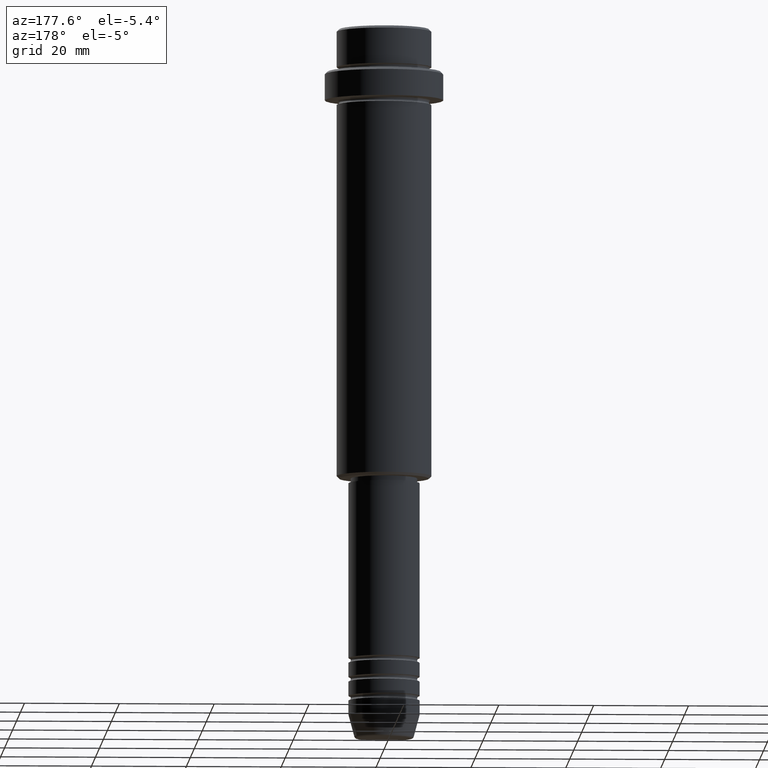
[diagram: clean part render]
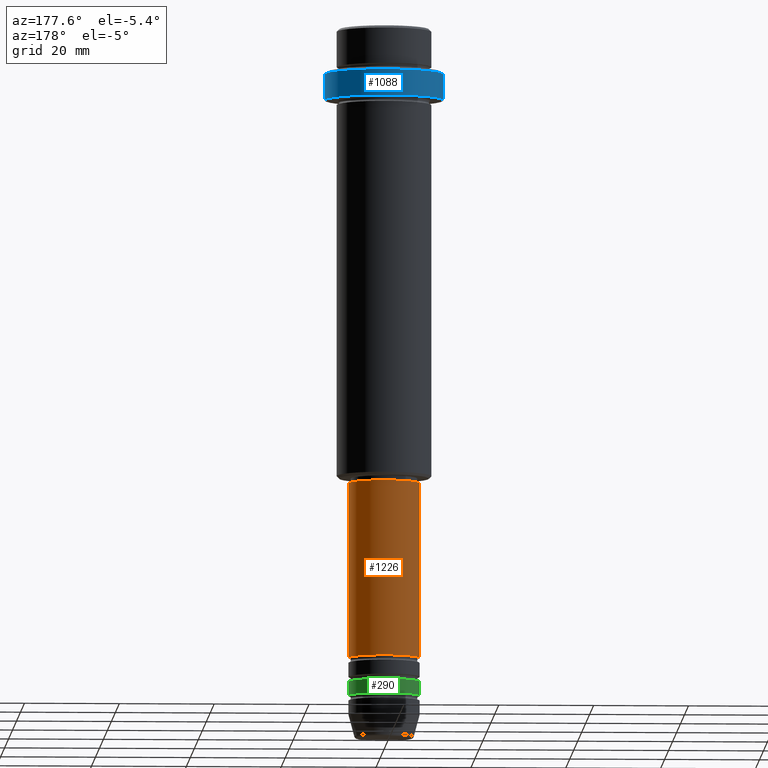
[diagram: same view with three faces highlighted in distinct colors, each labeled with its STEP entity id]
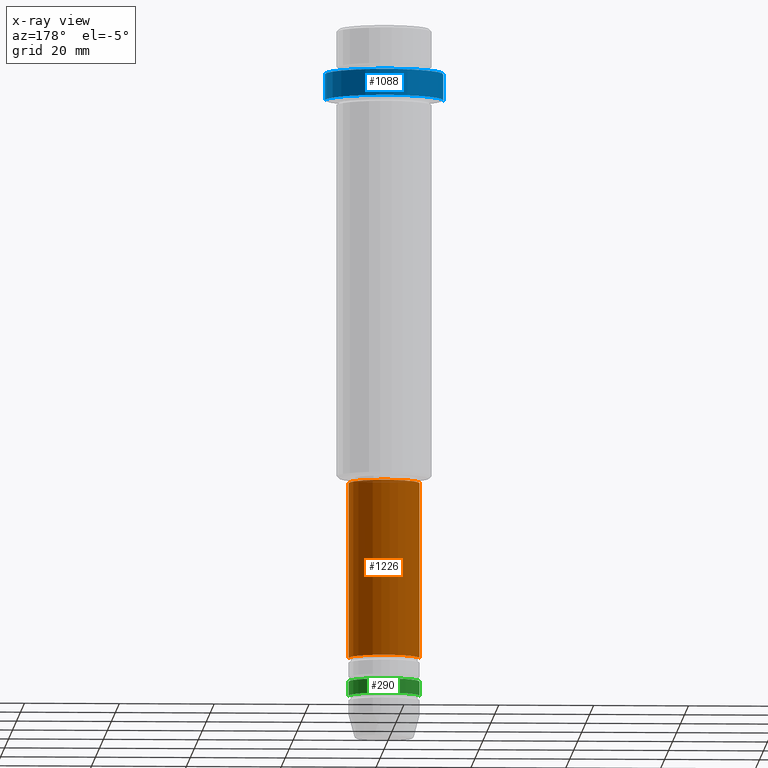
[diagram: x-ray of the same camera — body ghosted, the three highlighted faces saturated]
A machine part, auxiliary view with three faces highlighted in distinct colors.
The next image is the same camera in x-ray (body ghosted, the three faces saturated) — at least one of them is partly hidden behind the body in this view.
Their STEP definitions:

[orange] entity #1226 — the highlighted cylindrical surface (edge-blend (fillet) strip) has radius 7.5 mm, axis along (-0, -0, 1).
#49 = DIRECTION ( 'NONE',  ( -0.000000000000000000, -0.000000000000000000, 1.000000000000000000 ) ) ;
#70 = DIRECTION ( 'NONE',  ( 1.000000000000000000, 0.000000000000000000, 0.000000000000000000 ) ) ;
#73 = ORIENTED_EDGE ( 'NONE', *, *, #585, .T. ) ;
#149 = DIRECTION ( 'NONE',  ( 1.000000000000000000, 0.000000000000000000, 0.000000000000000000 ) ) ;
#194 = VERTEX_POINT ( 'NONE', #342 ) ;
#212 = AXIS2_PLACEMENT_3D ( 'NONE', #358, #1327, #1114 ) ;
#237 = CARTESIAN_POINT ( 'NONE',  ( 0.000000000000000000, 0.000000000000000000, -132.9999999999998579 ) ) ;
#252 = VECTOR ( 'NONE', #686, 1000.000000000000000 ) ;
#257 = LINE ( 'NONE', #1011, #252 ) ;
#342 = CARTESIAN_POINT ( 'NONE',  ( 7.500000000000000000, 0.000000000000000000, -132.9999999999998579 ) ) ;
#358 = CARTESIAN_POINT ( 'NONE',  ( 0.000000000000000000, 0.000000000000000000, 0.000000000000000000 ) ) ;
#396 = CARTESIAN_POINT ( 'NONE',  ( -7.500000000000000000, 9.184850993605147944E-16, -132.9999999999998579 ) ) ;
#444 = VERTEX_POINT ( 'NONE', #1402 ) ;
#585 = EDGE_CURVE ( 'NONE', #913, #1414, #983, .T. ) ;
#587 = EDGE_LOOP ( 'NONE', ( #1158, #73, #802, #1344 ) ) ;
#659 = DIRECTION ( 'NONE',  ( -0.000000000000000000, -0.000000000000000000, 1.000000000000000000 ) ) ;
#686 = DIRECTION ( 'NONE',  ( -0.000000000000000000, -0.000000000000000000, 1.000000000000000000 ) ) ;
#727 = EDGE_CURVE ( 'NONE', #194, #444, #257, .T. ) ;
#802 = ORIENTED_EDGE ( 'NONE', *, *, #1330, .F. ) ;
#854 = AXIS2_PLACEMENT_3D ( 'NONE', #1179, #49, #70 ) ;
#898 = DIRECTION ( 'NONE',  ( -0.000000000000000000, -0.000000000000000000, 1.000000000000000000 ) ) ;
#913 = VERTEX_POINT ( 'NONE', #396 ) ;
#983 = LINE ( 'NONE', #1416, #1012 ) ;
#1011 = CARTESIAN_POINT ( 'NONE',  ( 7.500000000000000000, 0.000000000000000000, 0.000000000000000000 ) ) ;
#1012 = VECTOR ( 'NONE', #659, 1000.000000000000000 ) ;
#1023 = FACE_OUTER_BOUND ( 'NONE', #587, .T. ) ;
#1114 = DIRECTION ( 'NONE',  ( 1.000000000000000000, 0.000000000000000000, 0.000000000000000000 ) ) ;
#1120 = CYLINDRICAL_SURFACE ( 'NONE', #212, 7.500000000000000000 ) ;
#1140 = EDGE_CURVE ( 'NONE', #194, #913, #1177, .T. ) ;
#1158 = ORIENTED_EDGE ( 'NONE', *, *, #1140, .T. ) ;
#1177 = CIRCLE ( 'NONE', #1339, 7.500000000000000000 ) ;
#1179 = CARTESIAN_POINT ( 'NONE',  ( 0.000000000000000000, 0.000000000000000000, -96.00000000000000000 ) ) ;
#1226 = ADVANCED_FACE ( 'NONE', ( #1023 ), #1120, .T. ) ;
#1259 = CARTESIAN_POINT ( 'NONE',  ( -7.500000000000000000, 9.184850993605147944E-16, -96.00000000000000000 ) ) ;
#1327 = DIRECTION ( 'NONE',  ( -0.000000000000000000, -0.000000000000000000, 1.000000000000000000 ) ) ;
#1330 = EDGE_CURVE ( 'NONE', #444, #1414, #1361, .T. ) ;
#1339 = AXIS2_PLACEMENT_3D ( 'NONE', #237, #898, #149 ) ;
#1344 = ORIENTED_EDGE ( 'NONE', *, *, #727, .F. ) ;
#1361 = CIRCLE ( 'NONE', #854, 7.500000000000000000 ) ;
#1402 = CARTESIAN_POINT ( 'NONE',  ( 7.500000000000000000, 0.000000000000000000, -96.00000000000000000 ) ) ;
#1414 = VERTEX_POINT ( 'NONE', #1259 ) ;
#1416 = CARTESIAN_POINT ( 'NONE',  ( -7.500000000000000000, 9.184850993605147944E-16, 0.000000000000000000 ) ) ;

[blue] entity #1088 — the highlighted cylindrical surface (partial cylindrical patch) has radius 12.5 mm, axis along (-0, -0, 1).
#110 = CARTESIAN_POINT ( 'NONE',  ( 0.000000000000000000, 0.000000000000000000, -15.00000000000000178 ) ) ;
#185 = AXIS2_PLACEMENT_3D ( 'NONE', #486, #704, #376 ) ;
#334 = CARTESIAN_POINT ( 'NONE',  ( 12.50000000000000000, 0.000000000000000000, 0.000000000000000000 ) ) ;
#335 = CARTESIAN_POINT ( 'NONE',  ( 12.50000000000000000, 0.000000000000000000, -15.00000000000000178 ) ) ;
#353 = EDGE_CURVE ( 'NONE', #719, #930, #900, .T. ) ;
#376 = DIRECTION ( 'NONE',  ( 1.000000000000000000, 0.000000000000000000, 0.000000000000000000 ) ) ;
#445 = LINE ( 'NONE', #480, #1294 ) ;
#480 = CARTESIAN_POINT ( 'NONE',  ( -12.50000000000000000, 1.530808498934191521E-15, 0.000000000000000000 ) ) ;
#486 = CARTESIAN_POINT ( 'NONE',  ( 0.000000000000000000, 0.000000000000000000, -9.499999999999952038 ) ) ;
#493 = VERTEX_POINT ( 'NONE', #1265 ) ;
#511 = AXIS2_PLACEMENT_3D ( 'NONE', #1075, #528, #992 ) ;
#528 = DIRECTION ( 'NONE',  ( -0.000000000000000000, -0.000000000000000000, 1.000000000000000000 ) ) ;
#537 = CYLINDRICAL_SURFACE ( 'NONE', #511, 12.50000000000000000 ) ;
#579 = ORIENTED_EDGE ( 'NONE', *, *, #353, .T. ) ;
#617 = ORIENTED_EDGE ( 'NONE', *, *, #1035, .F. ) ;
#637 = ORIENTED_EDGE ( 'NONE', *, *, #1303, .T. ) ;
#654 = VERTEX_POINT ( 'NONE', #335 ) ;
#658 = FACE_OUTER_BOUND ( 'NONE', #1377, .T. ) ;
#704 = DIRECTION ( 'NONE',  ( 0.000000000000000000, 0.000000000000000000, -1.000000000000000000 ) ) ;
#719 = VERTEX_POINT ( 'NONE', #1133 ) ;
#809 = VECTOR ( 'NONE', #888, 1000.000000000000000 ) ;
#888 = DIRECTION ( 'NONE',  ( -0.000000000000000000, -0.000000000000000000, 1.000000000000000000 ) ) ;
#900 = CIRCLE ( 'NONE', #185, 12.50000000000000000 ) ;
#929 = DIRECTION ( 'NONE',  ( -0.000000000000000000, -0.000000000000000000, 1.000000000000000000 ) ) ;
#930 = VERTEX_POINT ( 'NONE', #1170 ) ;
#992 = DIRECTION ( 'NONE',  ( 1.000000000000000000, 0.000000000000000000, 0.000000000000000000 ) ) ;
#1035 = EDGE_CURVE ( 'NONE', #654, #930, #1409, .T. ) ;
#1036 = EDGE_CURVE ( 'NONE', #654, #493, #1082, .T. ) ;
#1075 = CARTESIAN_POINT ( 'NONE',  ( 0.000000000000000000, 0.000000000000000000, 0.000000000000000000 ) ) ;
#1082 = CIRCLE ( 'NONE', #1360, 12.50000000000000000 ) ;
#1088 = ADVANCED_FACE ( 'NONE', ( #658 ), #537, .T. ) ;
#1133 = CARTESIAN_POINT ( 'NONE',  ( -12.50000000000000000, 1.530808498934191521E-15, -9.499999999999952038 ) ) ;
#1170 = CARTESIAN_POINT ( 'NONE',  ( 12.50000000000000000, 0.000000000000000000, -9.499999999999952038 ) ) ;
#1265 = CARTESIAN_POINT ( 'NONE',  ( -12.50000000000000000, 1.530808498934191521E-15, -15.00000000000000178 ) ) ;
#1274 = ORIENTED_EDGE ( 'NONE', *, *, #1036, .T. ) ;
#1294 = VECTOR ( 'NONE', #929, 1000.000000000000000 ) ;
#1303 = EDGE_CURVE ( 'NONE', #493, #719, #445, .T. ) ;
#1322 = DIRECTION ( 'NONE',  ( -0.000000000000000000, -0.000000000000000000, 1.000000000000000000 ) ) ;
#1360 = AXIS2_PLACEMENT_3D ( 'NONE', #110, #1322, #1415 ) ;
#1377 = EDGE_LOOP ( 'NONE', ( #1274, #637, #579, #617 ) ) ;
#1409 = LINE ( 'NONE', #334, #809 ) ;
#1415 = DIRECTION ( 'NONE',  ( 1.000000000000000000, 0.000000000000000000, 0.000000000000000000 ) ) ;

[green] entity #290 — the highlighted cylindrical surface (edge-blend (fillet) strip) has radius 7.5 mm, axis along (-0, -0, 1).
#4 = CIRCLE ( 'NONE', #939, 7.500000000000000000 ) ;
#16 = VERTEX_POINT ( 'NONE', #1301 ) ;
#21 = ORIENTED_EDGE ( 'NONE', *, *, #119, .F. ) ;
#44 = CARTESIAN_POINT ( 'NONE',  ( -7.500000000000000000, 9.184850993605147944E-16, -140.9999999999998579 ) ) ;
#88 = DIRECTION ( 'NONE',  ( 1.000000000000000000, 0.000000000000000000, 0.000000000000000000 ) ) ;
#119 = EDGE_CURVE ( 'NONE', #487, #16, #4, .T. ) ;
#186 = LINE ( 'NONE', #1255, #1081 ) ;
#290 = ADVANCED_FACE ( 'NONE', ( #331 ), #995, .T. ) ;
#331 = FACE_OUTER_BOUND ( 'NONE', #408, .T. ) ;
#341 = AXIS2_PLACEMENT_3D ( 'NONE', #546, #984, #769 ) ;
#384 = CARTESIAN_POINT ( 'NONE',  ( 0.000000000000000000, 0.000000000000000000, -137.9999999999998863 ) ) ;
#387 = CARTESIAN_POINT ( 'NONE',  ( 7.500000000000000000, 0.000000000000000000, -140.9999999999998579 ) ) ;
#408 = EDGE_LOOP ( 'NONE', ( #494, #1218, #21, #692 ) ) ;
#487 = VERTEX_POINT ( 'NONE', #627 ) ;
#494 = ORIENTED_EDGE ( 'NONE', *, *, #1194, .T. ) ;
#532 = AXIS2_PLACEMENT_3D ( 'NONE', #1109, #1237, #580 ) ;
#546 = CARTESIAN_POINT ( 'NONE',  ( 0.000000000000000000, 0.000000000000000000, 0.000000000000000000 ) ) ;
#580 = DIRECTION ( 'NONE',  ( 1.000000000000000000, 0.000000000000000000, 0.000000000000000000 ) ) ;
#600 = DIRECTION ( 'NONE',  ( -0.000000000000000000, -0.000000000000000000, 1.000000000000000000 ) ) ;
#601 = EDGE_CURVE ( 'NONE', #1296, #16, #1096, .T. ) ;
#627 = CARTESIAN_POINT ( 'NONE',  ( 7.500000000000000000, 0.000000000000000000, -137.9999999999998863 ) ) ;
#692 = ORIENTED_EDGE ( 'NONE', *, *, #870, .F. ) ;
#769 = DIRECTION ( 'NONE',  ( 1.000000000000000000, 0.000000000000000000, 0.000000000000000000 ) ) ;
#829 = DIRECTION ( 'NONE',  ( -0.000000000000000000, -0.000000000000000000, 1.000000000000000000 ) ) ;
#870 = EDGE_CURVE ( 'NONE', #1392, #487, #186, .T. ) ;
#939 = AXIS2_PLACEMENT_3D ( 'NONE', #384, #829, #88 ) ;
#984 = DIRECTION ( 'NONE',  ( -0.000000000000000000, -0.000000000000000000, 1.000000000000000000 ) ) ;
#993 = DIRECTION ( 'NONE',  ( -0.000000000000000000, -0.000000000000000000, 1.000000000000000000 ) ) ;
#995 = CYLINDRICAL_SURFACE ( 'NONE', #341, 7.500000000000000000 ) ;
#1081 = VECTOR ( 'NONE', #600, 1000.000000000000000 ) ;
#1085 = CARTESIAN_POINT ( 'NONE',  ( -7.500000000000000000, 9.184850993605147944E-16, 0.000000000000000000 ) ) ;
#1096 = LINE ( 'NONE', #1085, #1199 ) ;
#1109 = CARTESIAN_POINT ( 'NONE',  ( 0.000000000000000000, 0.000000000000000000, -140.9999999999998579 ) ) ;
#1153 = CIRCLE ( 'NONE', #532, 7.500000000000000000 ) ;
#1194 = EDGE_CURVE ( 'NONE', #1392, #1296, #1153, .T. ) ;
#1199 = VECTOR ( 'NONE', #993, 1000.000000000000000 ) ;
#1218 = ORIENTED_EDGE ( 'NONE', *, *, #601, .T. ) ;
#1237 = DIRECTION ( 'NONE',  ( -0.000000000000000000, -0.000000000000000000, 1.000000000000000000 ) ) ;
#1255 = CARTESIAN_POINT ( 'NONE',  ( 7.500000000000000000, 0.000000000000000000, 0.000000000000000000 ) ) ;
#1296 = VERTEX_POINT ( 'NONE', #44 ) ;
#1301 = CARTESIAN_POINT ( 'NONE',  ( -7.500000000000000000, 9.184850993605147944E-16, -137.9999999999998863 ) ) ;
#1392 = VERTEX_POINT ( 'NONE', #387 ) ;